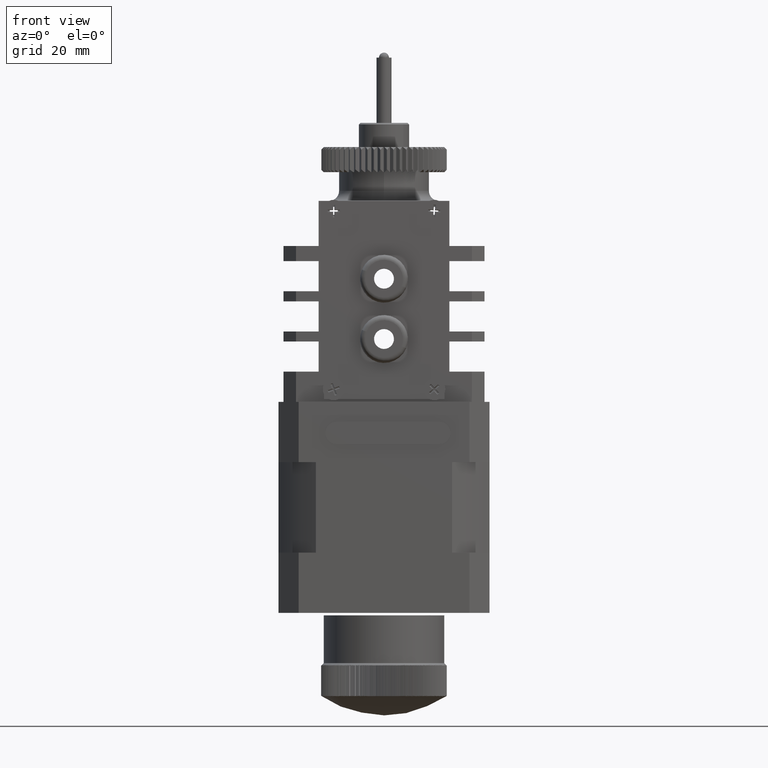
[diagram: clean part render]
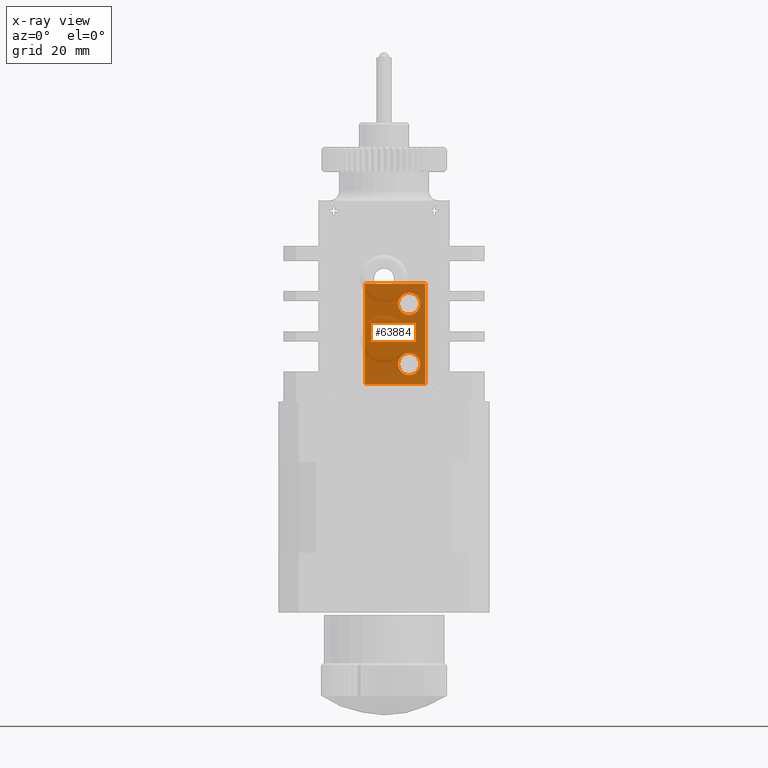
[diagram: x-ray — body ghosted, one internal face saturated and labeled with its STEP entity id]
A machine part, front view, then the same camera in x-ray: the body is ghosted and one INTERNAL B-rep face — a face not visible from any outside direction — is saturated and labeled: STEP entity #63884.
In plain terms, the highlighted planar face has unit normal (0, -1, -0).
Its self-contained STEP definition (entity closure, byte-faithful):
#44316 = CARTESIAN_POINT ( 'NONE',  ( -1.634412530982981800, -0.06230075441186356400, 0.6686589376203162500 ) ) ;
#44548 = DIRECTION ( 'NONE',  ( -2.738235966446667900E-016, 1.000000000000000000, 9.175317594134575300E-017 ) ) ;
#44550 = CARTESIAN_POINT ( 'NONE',  ( -1.760396782951486200, -0.06230075441186356400, 0.03873767777779656800 ) ) ;
#44552 = AXIS2_PLACEMENT_3D ( 'NONE', #44550, #44548, #44704 ) ;
#44553 = CIRCLE ( 'NONE', #44552, 0.08661417322834648300 ) ;
#44555 = LINE ( 'NONE', #44699, #44697 ) ;
#44561 = CARTESIAN_POINT ( 'NONE',  ( -1.760396782951486200, -0.06230075441186357800, 0.1253518510061430400 ) ) ;
#44563 = CARTESIAN_POINT ( 'NONE',  ( -1.760396782951486200, -0.06230075441186355700, -0.04787649545054990800 ) ) ;
#44633 = FACE_BOUND ( 'NONE', #63886, .T. ) ;
#44667 = CARTESIAN_POINT ( 'NONE',  ( -2.106853475864871600, -0.06230075441186384100, 0.6686589376203165800 ) ) ;
#44669 = DIRECTION ( 'NONE',  ( 1.000000000000000000, 2.738235966446668900E-016, -2.550043509685906400E-016 ) ) ;
#44671 = VECTOR ( 'NONE', #44669, 39.37007874015748100 ) ;
#44673 = CARTESIAN_POINT ( 'NONE',  ( -1.634412530982981800, -0.06230075441186356400, 0.6686589376203162500 ) ) ;
#44674 = LINE ( 'NONE', #44673, #44671 ) ;
#44680 = CARTESIAN_POINT ( 'NONE',  ( -2.106853475864872000, -0.06230075441186356400, -0.1187426371828332200 ) ) ;
#44682 = DIRECTION ( 'NONE',  ( -1.000000000000000000, -2.738235966446668900E-016, 2.550043509685906400E-016 ) ) ;
#44684 = VECTOR ( 'NONE', #44682, 39.37007874015748100 ) ;
#44686 = CARTESIAN_POINT ( 'NONE',  ( -1.634412530982982000, -0.06230075441186356400, -0.1187426371828335000 ) ) ;
#44687 = LINE ( 'NONE', #44686, #44684 ) ;
#44693 = CARTESIAN_POINT ( 'NONE',  ( -1.634412530982982000, -0.06230075441186356400, -0.1187426371828335000 ) ) ;
#44696 = DIRECTION ( 'NONE',  ( -2.550043509685907400E-016, 9.175317594134569200E-017, -1.000000000000000000 ) ) ;
#44697 = VECTOR ( 'NONE', #44696, 39.37007874015748100 ) ;
#44699 = CARTESIAN_POINT ( 'NONE',  ( -1.634412530982981800, -0.06230075441186356400, 0.6686589376203162500 ) ) ;
#44704 = DIRECTION ( 'NONE',  ( 0.0000000000000000000, 9.856383386231856400E-017, -1.000000000000000000 ) ) ;
#44717 = DIRECTION ( 'NONE',  ( 2.550043509685907400E-016, -9.175317594134569200E-017, 1.000000000000000000 ) ) ;
#44719 = DIRECTION ( 'NONE',  ( 2.738235966446667900E-016, -1.000000000000000000, -9.175317594134576600E-017 ) ) ;
#44721 = CARTESIAN_POINT ( 'NONE',  ( -2.106853475864871600, -0.06230075441186384100, 0.6686589376203165800 ) ) ;
#44723 = AXIS2_PLACEMENT_3D ( 'NONE', #44721, #44719, #44717 ) ;
#44728 = PLANE ( 'NONE',  #44723 ) ;
#44784 = FACE_BOUND ( 'NONE', #63956, .T. ) ;
#44786 = FACE_OUTER_BOUND ( 'NONE', #63844, .T. ) ;
#44931 = DIRECTION ( 'NONE',  ( 2.550043509685907400E-016, -9.175317594134569200E-017, 1.000000000000000000 ) ) ;
#44932 = VECTOR ( 'NONE', #44931, 39.37007874015748100 ) ;
#44934 = CARTESIAN_POINT ( 'NONE',  ( -2.106853475864871600, -0.06230075441186384100, 0.6686589376203165800 ) ) ;
#44935 = LINE ( 'NONE', #44934, #44932 ) ;
#45050 = DIRECTION ( 'NONE',  ( 0.0000000000000000000, 9.856383386231856400E-017, -1.000000000000000000 ) ) ;
#45052 = DIRECTION ( 'NONE',  ( -2.738235966446667900E-016, 1.000000000000000000, 9.175317594134575300E-017 ) ) ;
#45053 = CARTESIAN_POINT ( 'NONE',  ( -1.760396782951485700, -0.06230075441186356400, 0.5111786226596865000 ) ) ;
#45055 = AXIS2_PLACEMENT_3D ( 'NONE', #45053, #45052, #45050 ) ;
#45056 = CIRCLE ( 'NONE', #45055, 0.08661417322834648300 ) ;
#45064 = CARTESIAN_POINT ( 'NONE',  ( -1.760396782951485700, -0.06230075441186357800, 0.5977927958880330200 ) ) ;
#45066 = CARTESIAN_POINT ( 'NONE',  ( -1.760396782951485700, -0.06230075441186355700, 0.4245644494313400300 ) ) ;
#45068 = DIRECTION ( 'NONE',  ( 0.0000000000000000000, 9.856383386231856400E-017, -1.000000000000000000 ) ) ;
#45069 = DIRECTION ( 'NONE',  ( -2.738235966446667900E-016, 1.000000000000000000, 9.175317594134575300E-017 ) ) ;
#45071 = CARTESIAN_POINT ( 'NONE',  ( -1.760396782951485700, -0.06230075441186356400, 0.5111786226596865000 ) ) ;
#45073 = AXIS2_PLACEMENT_3D ( 'NONE', #45071, #45069, #45068 ) ;
#45075 = CIRCLE ( 'NONE', #45073, 0.08661417322834648300 ) ;
#45096 = DIRECTION ( 'NONE',  ( 0.0000000000000000000, 9.856383386231856400E-017, -1.000000000000000000 ) ) ;
#45098 = DIRECTION ( 'NONE',  ( -2.738235966446667900E-016, 1.000000000000000000, 9.175317594134575300E-017 ) ) ;
#45099 = CARTESIAN_POINT ( 'NONE',  ( -1.760396782951486200, -0.06230075441186356400, 0.03873767777779656800 ) ) ;
#45101 = AXIS2_PLACEMENT_3D ( 'NONE', #45099, #45098, #45096 ) ;
#45103 = CIRCLE ( 'NONE', #45101, 0.08661417322834648300 ) ;
#63773 = VERTEX_POINT ( 'NONE', #44316 ) ;
#63838 = VERTEX_POINT ( 'NONE', #44563 ) ;
#63839 = VERTEX_POINT ( 'NONE', #44561 ) ;
#63841 = ORIENTED_EDGE ( 'NONE', *, *, #63842, .F. ) ;
#63842 = EDGE_CURVE ( 'NONE', #63839, #63838, #44553, .T. ) ;
#63844 = EDGE_LOOP ( 'NONE', ( #63845, #63847, #63851, #63855 ) ) ;
#63845 = ORIENTED_EDGE ( 'NONE', *, *, #63858, .T. ) ;
#63847 = ORIENTED_EDGE ( 'NONE', *, *, #63848, .T. ) ;
#63848 = EDGE_CURVE ( 'NONE', #63773, #63850, #44555, .T. ) ;
#63850 = VERTEX_POINT ( 'NONE', #44693 ) ;
#63851 = ORIENTED_EDGE ( 'NONE', *, *, #63852, .T. ) ;
#63852 = EDGE_CURVE ( 'NONE', #63850, #63854, #44687, .T. ) ;
#63854 = VERTEX_POINT ( 'NONE', #44680 ) ;
#63855 = ORIENTED_EDGE ( 'NONE', *, *, #63955, .T. ) ;
#63858 = EDGE_CURVE ( 'NONE', #63860, #63773, #44674, .T. ) ;
#63860 = VERTEX_POINT ( 'NONE', #44667 ) ;
#63884 = ADVANCED_FACE ( 'NONE', ( #44633, #44786, #44784 ), #44728, .F. ) ;
#63886 = EDGE_LOOP ( 'NONE', ( #63888, #63841 ) ) ;
#63888 = ORIENTED_EDGE ( 'NONE', *, *, #63980, .F. ) ;
#63955 = EDGE_CURVE ( 'NONE', #63854, #63860, #44935, .T. ) ;
#63956 = EDGE_LOOP ( 'NONE', ( #63957, #63965 ) ) ;
#63957 = ORIENTED_EDGE ( 'NONE', *, *, #63959, .F. ) ;
#63959 = EDGE_CURVE ( 'NONE', #63961, #63964, #45075, .T. ) ;
#63961 = VERTEX_POINT ( 'NONE', #45066 ) ;
#63964 = VERTEX_POINT ( 'NONE', #45064 ) ;
#63965 = ORIENTED_EDGE ( 'NONE', *, *, #63966, .F. ) ;
#63966 = EDGE_CURVE ( 'NONE', #63964, #63961, #45056, .T. ) ;
#63980 = EDGE_CURVE ( 'NONE', #63838, #63839, #45103, .T. ) ;